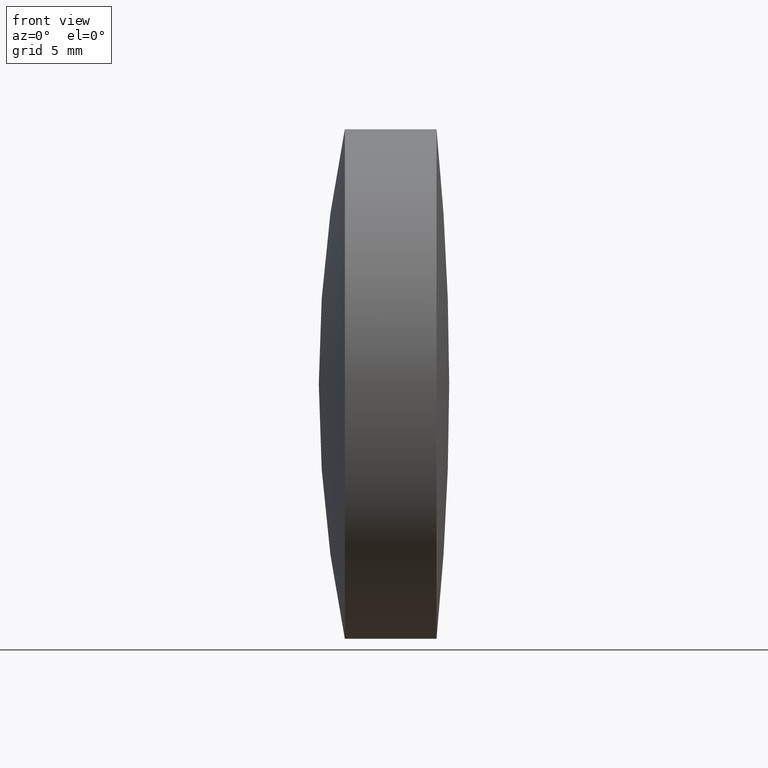
[diagram: clean part render]
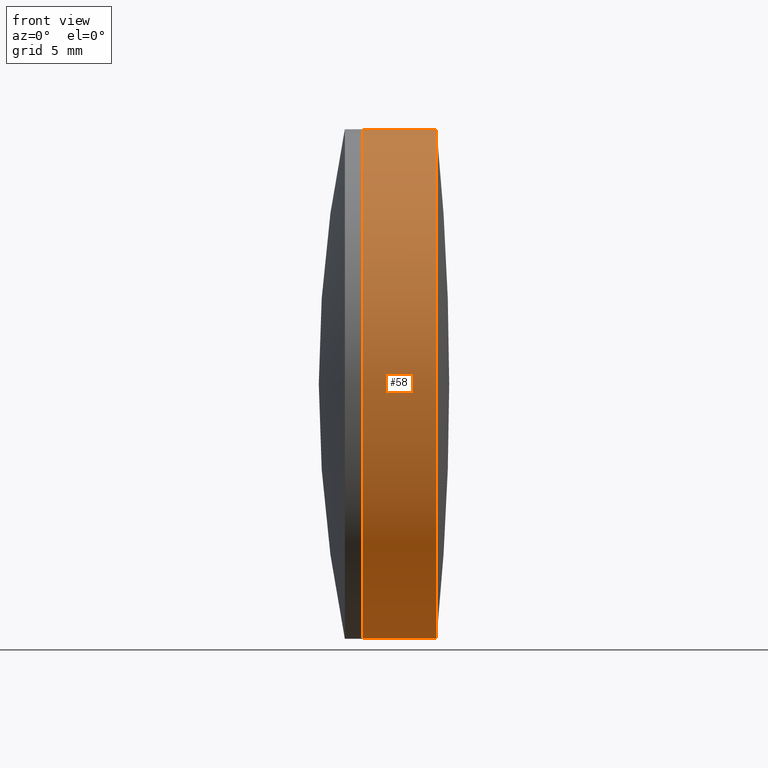
[diagram: same view with one face highlighted and labeled with its STEP entity id]
A machine part, front view. The second image highlights one B-rep face of the part: STEP entity #58.
In plain terms, the highlighted cylindrical surface (partial cylindrical patch) has radius 12.7 mm, axis along (-1, -0, -0).
Its self-contained STEP definition (entity closure, byte-faithful):
#2 = DIRECTION ( 'NONE',  ( 0.0000000000000000000, 0.0000000000000000000, 1.000000000000000000 ) ) ;
#4 = DIRECTION ( 'NONE',  ( -1.000000000000000000, -0.0000000000000000000, -0.0000000000000000000 ) ) ;
#13 = CARTESIAN_POINT ( 'NONE',  ( -0.5519199926577972300, 1.555301434917138600E-015, -12.70000000000000100 ) ) ;
#17 = VERTEX_POINT ( 'NONE', #46 ) ;
#24 = DIRECTION ( 'NONE',  ( -1.000000000000000000, -0.0000000000000000000, -0.0000000000000000000 ) ) ;
#30 = EDGE_CURVE ( 'NONE', #32, #17, #97, .T. ) ;
#32 = VERTEX_POINT ( 'NONE', #237 ) ;
#37 = EDGE_CURVE ( 'NONE', #32, #132, #86, .T. ) ;
#38 = AXIS2_PLACEMENT_3D ( 'NONE', #65, #149, #2 ) ;
#46 = CARTESIAN_POINT ( 'NONE',  ( 254.9957319130559200, 1.555301434917138400E-015, -12.70000000000000300 ) ) ;
#58 = ADVANCED_FACE ( 'NONE', ( #68 ), #335, .T. ) ;
#59 = DIRECTION ( 'NONE',  ( 0.0000000000000000000, 0.0000000000000000000, 1.000000000000000000 ) ) ;
#65 = CARTESIAN_POINT ( 'NONE',  ( 254.9957319130559200, 0.0000000000000000000, 0.0000000000000000000 ) ) ;
#68 = FACE_OUTER_BOUND ( 'NONE', #320, .T. ) ;
#74 = CARTESIAN_POINT ( 'NONE',  ( 254.9957319130559200, 0.0000000000000000000, 12.69999999999999900 ) ) ;
#85 = ORIENTED_EDGE ( 'NONE', *, *, #30, .F. ) ;
#86 = CIRCLE ( 'NONE', #257, 12.69999999999999600 ) ;
#95 = CARTESIAN_POINT ( 'NONE',  ( 258.6652386893144400, 0.0000000000000000000, 0.0000000000000000000 ) ) ;
#97 = LINE ( 'NONE', #13, #314 ) ;
#99 = CARTESIAN_POINT ( 'NONE',  ( -0.5519199926577972300, 0.0000000000000000000, 12.70000000000000100 ) ) ;
#129 = EDGE_CURVE ( 'NONE', #17, #140, #255, .T. ) ;
#132 = VERTEX_POINT ( 'NONE', #154 ) ;
#140 = VERTEX_POINT ( 'NONE', #74 ) ;
#142 = DIRECTION ( 'NONE',  ( -1.000000000000000000, -0.0000000000000000000, -0.0000000000000000000 ) ) ;
#145 = CARTESIAN_POINT ( 'NONE',  ( -0.5519199926577972300, 0.0000000000000000000, 0.0000000000000000000 ) ) ;
#149 = DIRECTION ( 'NONE',  ( -1.000000000000000000, -0.0000000000000000000, -0.0000000000000000000 ) ) ;
#154 = CARTESIAN_POINT ( 'NONE',  ( 258.6652386893144400, 0.0000000000000000000, 12.69999999999999600 ) ) ;
#163 = EDGE_CURVE ( 'NONE', #132, #140, #330, .T. ) ;
#167 = ORIENTED_EDGE ( 'NONE', *, *, #163, .T. ) ;
#208 = ORIENTED_EDGE ( 'NONE', *, *, #37, .T. ) ;
#209 = DIRECTION ( 'NONE',  ( -1.000000000000000000, -0.0000000000000000000, -0.0000000000000000000 ) ) ;
#237 = CARTESIAN_POINT ( 'NONE',  ( 258.6652386893144400, 1.555301434917138200E-015, -12.69999999999999600 ) ) ;
#240 = ORIENTED_EDGE ( 'NONE', *, *, #129, .F. ) ;
#255 = CIRCLE ( 'NONE', #38, 12.70000000000000600 ) ;
#257 = AXIS2_PLACEMENT_3D ( 'NONE', #95, #4, #59 ) ;
#295 = DIRECTION ( 'NONE',  ( 0.0000000000000000000, 0.0000000000000000000, 1.000000000000000000 ) ) ;
#299 = AXIS2_PLACEMENT_3D ( 'NONE', #145, #24, #295 ) ;
#311 = VECTOR ( 'NONE', #142, 1000.000000000000000 ) ;
#314 = VECTOR ( 'NONE', #209, 1000.000000000000000 ) ;
#320 = EDGE_LOOP ( 'NONE', ( #85, #208, #167, #240 ) ) ;
#330 = LINE ( 'NONE', #99, #311 ) ;
#335 = CYLINDRICAL_SURFACE ( 'NONE', #299, 12.70000000000000100 ) ;